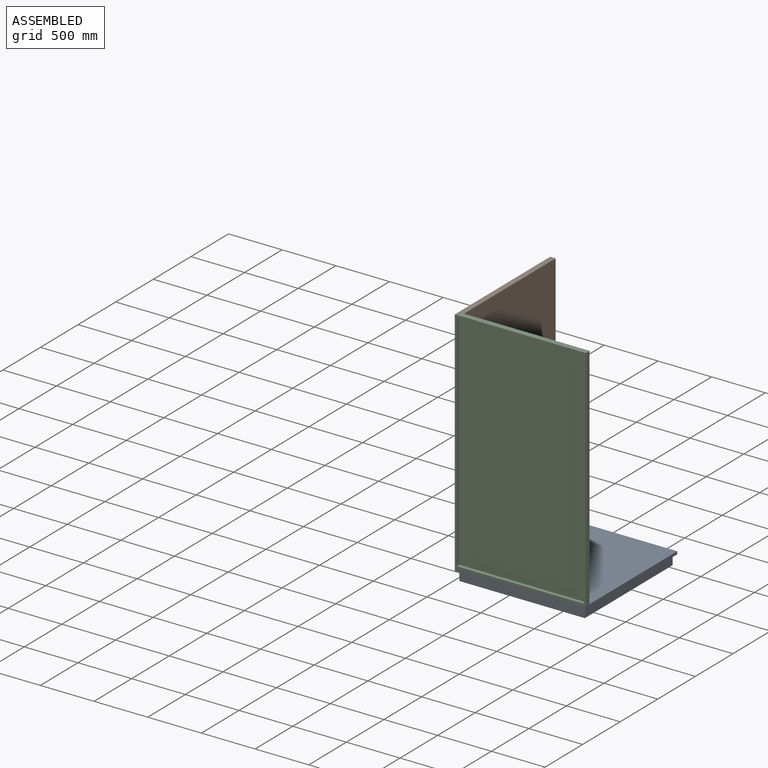
[diagram: assembled view]
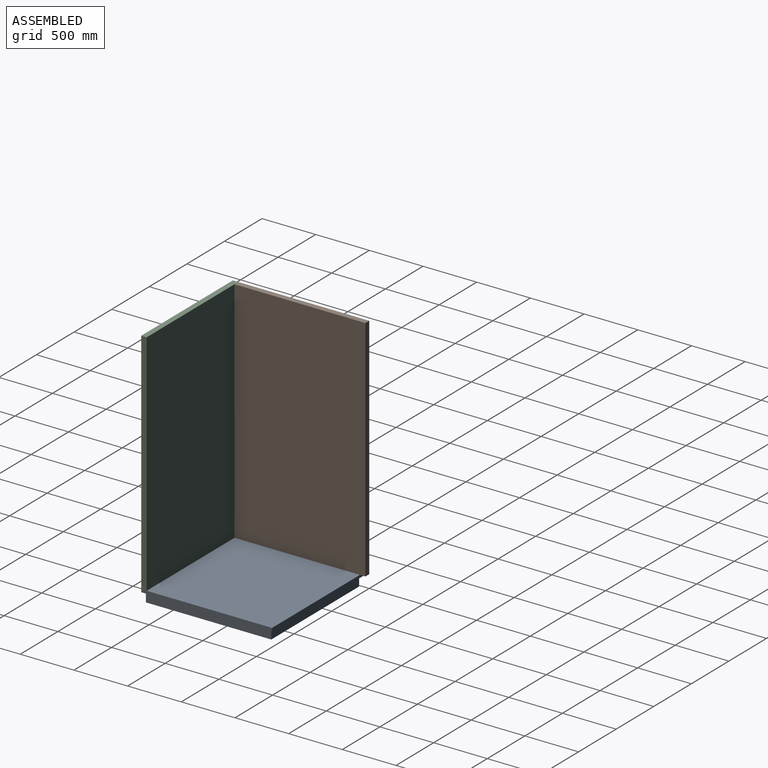
[diagram: assembled view, second angle]
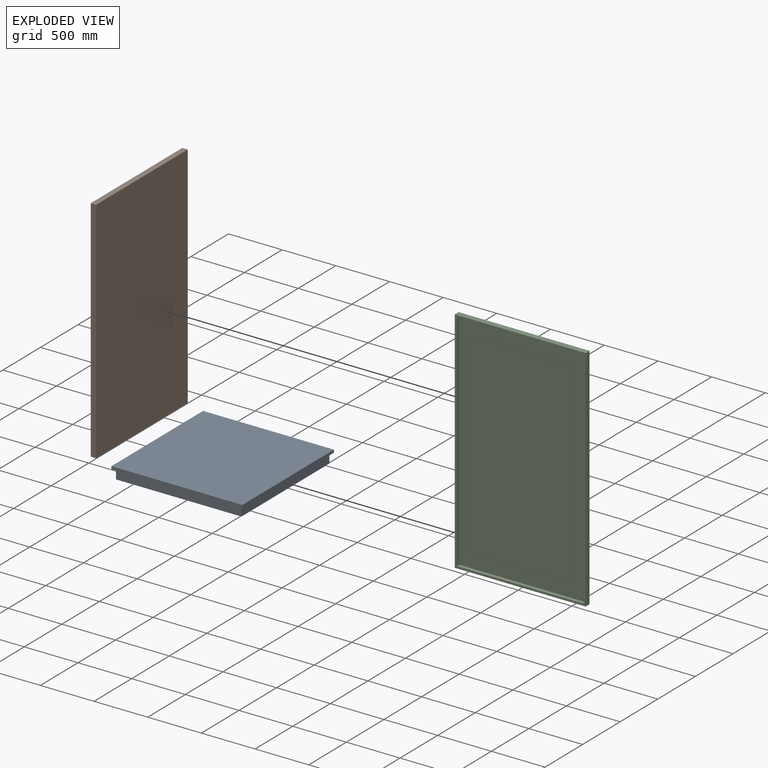
[diagram: exploded view]
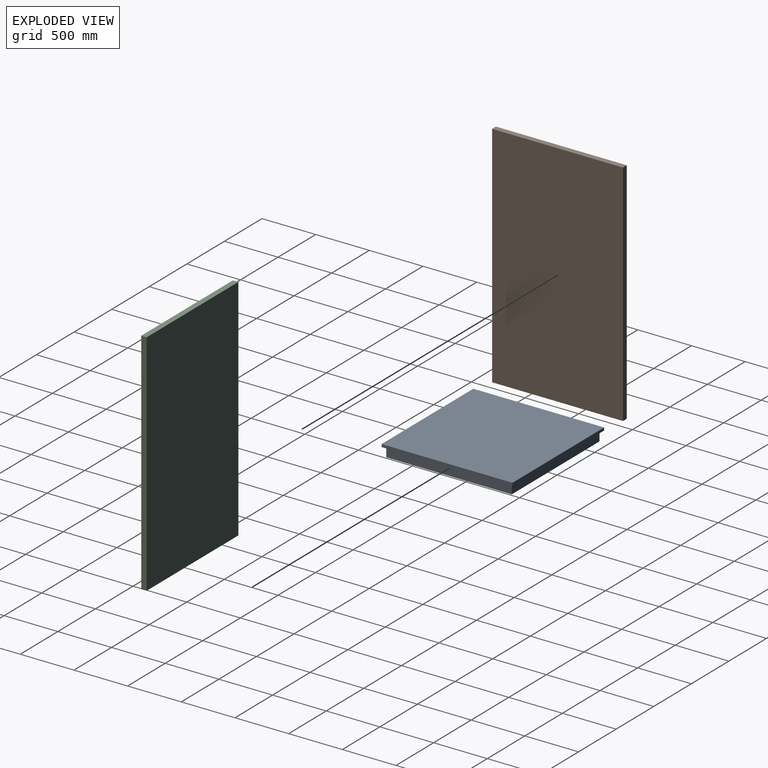
[diagram: exploded view, second angle]
ASSEMBLY  parts=3 mates=2
PART A: 16 faces, bbox 1219.2x1219.2x114.3 mm
  f0: plane 1219.2x1219.2mm, normal (0,0,-1), area 121290mm2, adj f1,f2,f3,f4,f6,f7,f8,f9
  f1: plane 1219.2x25.4mm, normal (0,1,0), area 30967.7mm2, adj f0,f2,f4,f5
  f2: plane 1219.2x25.4mm, normal (-1,0,0), area 30967.7mm2, adj f0,f1,f3,f5
  f3: plane 1219.2x25.4mm, normal (0,-1,0), area 30967.7mm2, adj f0,f2,f4,f5
  f4: plane 1219.2x25.4mm, normal (1,0,0), area 30967.7mm2, adj f0,f1,f3,f5
  f5: plane 1219.2x1219.2mm, normal (0,0,1), area 1486448.6mm2, adj f1,f2,f3,f4
  f6: plane 1168.4x88.9mm, normal (0,1,0), area 103870.8mm2, adj f0,f7,f9,f10
  f7: plane 1168.4x88.9mm, normal (1,0,0), area 103870.8mm2, adj f0,f6,f8,f10
  f8: plane 1168.4x88.9mm, normal (0,-1,0), area 103870.8mm2, adj f0,f7,f9,f10
  f9: plane 1168.4x88.9mm, normal (-1,0,0), area 103870.8mm2, adj f0,f6,f8,f10
  f10: plane 1168.4x1168.4mm, normal (0,0,-1), area 172257.7mm2, adj f6,f7,f8,f9,f11,f12,f13,f14
  f11: plane 1092.2x88.9mm, normal (0,-1,0), area 97096.6mm2, adj f10,f12,f14,f15
  f12: plane 1092.2x88.9mm, normal (-1,0,0), area 97096.6mm2, adj f10,f11,f13,f15
  f13: plane 1092.2x88.9mm, normal (0,1,0), area 97096.6mm2, adj f10,f12,f14,f15
  f14: plane 1092.2x88.9mm, normal (1,0,0), area 97096.6mm2, adj f10,f11,f13,f15
  f15: plane 1092.2x1092.2mm, normal (0,0,-1), area 1192900.9mm2, adj f11,f12,f13,f14
PART B: 11 faces, bbox 1219.2x50.8x2133.6 mm
  f0: plane 2133.6x1219.2mm, normal (0,-1,0), area 126290.1mm2, adj f1,f2,f3,f4,f6,f7,f8,f9
  f1: plane 1219.2x50.8mm, normal (0,0,1), area 61935.4mm2, adj f0,f2,f4,f5
  f2: plane 2133.6x50.8mm, normal (-1,0,0), area 108386.9mm2, adj f0,f1,f3,f5
  f3: plane 1219.2x50.8mm, normal (0,0,-1), area 61935.4mm2, adj f0,f2,f4,f5
  f4: plane 2133.6x50.8mm, normal (1,0,0), area 108386.9mm2, adj f0,f1,f3,f5
  f5: plane 2133.6x1219.2mm, normal (0,1,0), area 2601285.1mm2, adj f1,f2,f3,f4
  f6: plane 1181.1x31.75mm, normal (0,0,-1), area 37499.9mm2, adj f0,f7,f9,f10
  f7: plane 2095.5x31.75mm, normal (1,0,0), area 66532.1mm2, adj f0,f6,f8,f10
  f8: plane 1181.1x31.75mm, normal (0,0,1), area 37499.9mm2, adj f0,f7,f9,f10
  f9: plane 2095.5x31.75mm, normal (-1,0,0), area 66532.1mm2, adj f0,f6,f8,f10
  f10: plane 2095.5x1181.1mm, normal (0,-1,0), area 2474995mm2, adj f6,f7,f8,f9
PART C: same geometry as B
PLACE A t=(-655.58,1381.94,-944.39)mm fixed
PLACE B rot(axis=(0,0,-1),90deg) t=(-1281.94,1671.8,-4623.59)mm
PLACE C t=(-3559.96,-1571.42,-4623.59)mm
MATE fastened A.f2 <-> C.f2  axis (-1,0,0) through (-1434.34,-1723.82,-899.94)mm
MATE fastened B.f0 <-> C.f2  axis (-1,0,0) through (-1434.34,-1673.02,1233.66)mm
